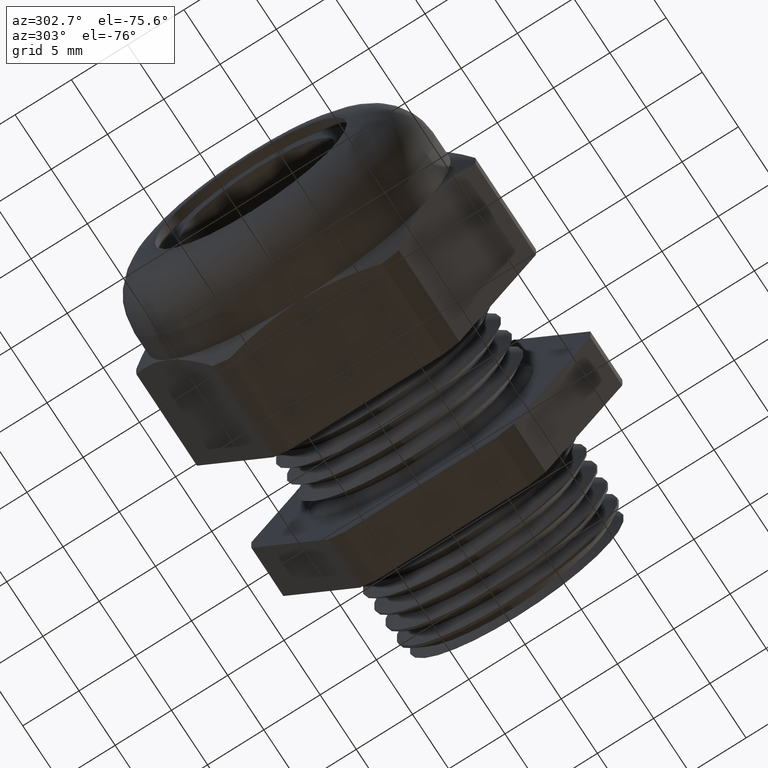
[diagram: clean part render]
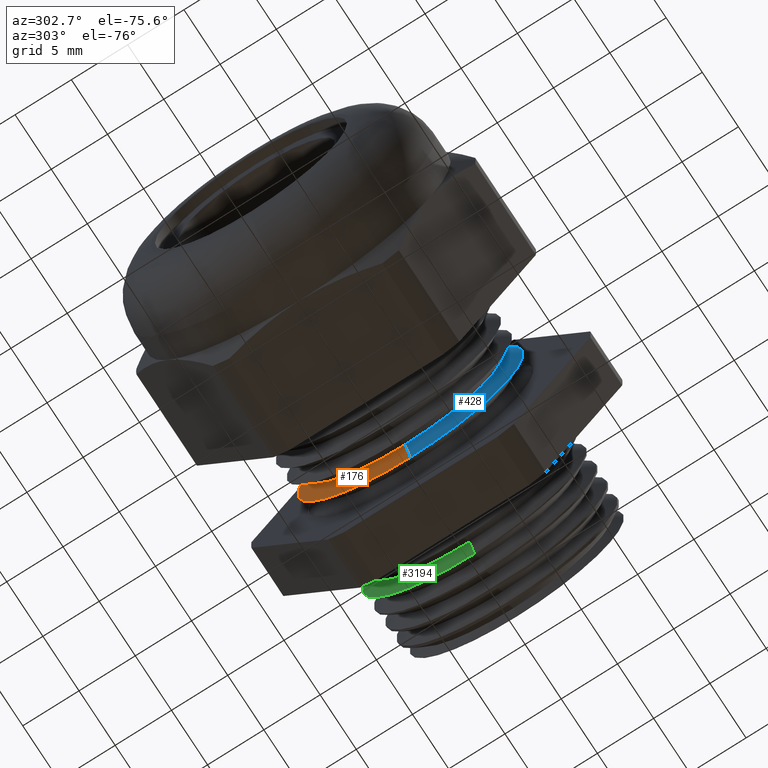
[diagram: same view with three faces highlighted in distinct colors, each labeled with its STEP entity id]
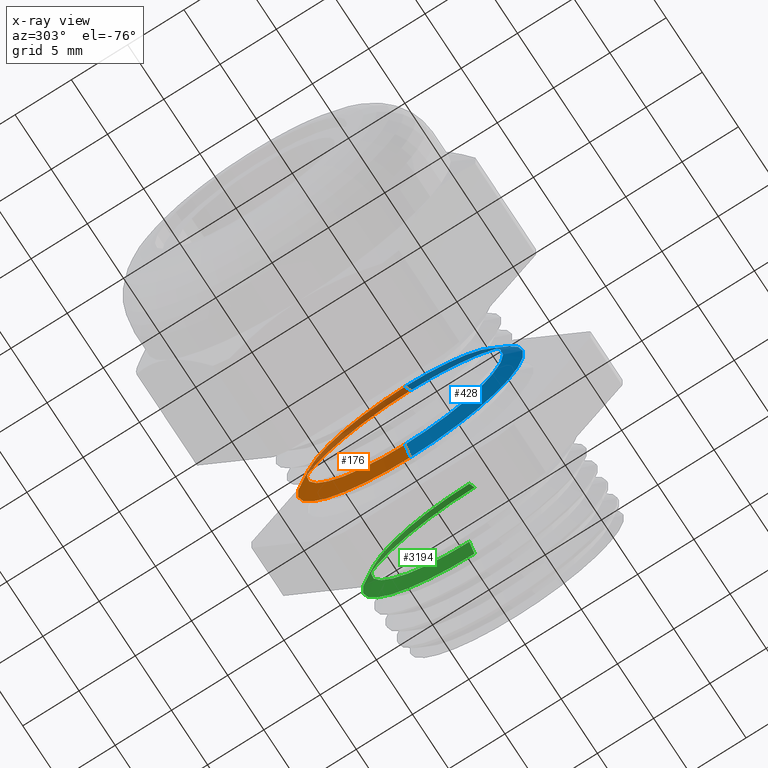
[diagram: x-ray of the same camera — body ghosted, the three highlighted faces saturated]
A machine part, auxiliary view with three faces highlighted in distinct colors.
The next image is the same camera in x-ray (body ghosted, the three faces saturated) — at least one of them is partly hidden behind the body in this view.
Their STEP definitions:

[orange] entity #176 — the highlighted conical surface has half-angle 60 deg.
#163 = ORIENTED_EDGE ( 'NONE', *, *, #166, .F. ) ;
#166 = EDGE_CURVE ( 'NONE', #183, #551, #1160, .T. ) ;
#171 = EDGE_CURVE ( 'NONE', #183, #307, #1204, .T. ) ;
#176 = ADVANCED_FACE ( 'NONE', ( #1190 ), #1188, .T. ) ;
#183 = VERTEX_POINT ( 'NONE', #1232 ) ;
#203 = EDGE_LOOP ( 'NONE', ( #311, #309, #308, #163 ) ) ;
#307 = VERTEX_POINT ( 'NONE', #1420 ) ;
#308 = ORIENTED_EDGE ( 'NONE', *, *, #550, .F. ) ;
#309 = ORIENTED_EDGE ( 'NONE', *, *, #310, .T. ) ;
#310 = EDGE_CURVE ( 'NONE', #307, #547, #1419, .T. ) ;
#311 = ORIENTED_EDGE ( 'NONE', *, *, #171, .T. ) ;
#547 = VERTEX_POINT ( 'NONE', #1793 ) ;
#550 = EDGE_CURVE ( 'NONE', #551, #547, #1785, .T. ) ;
#551 = VERTEX_POINT ( 'NONE', #1780 ) ;
#1147 = CARTESIAN_POINT ( 'NONE',  ( -0.2608333473208367400, 0.0000000000000000000, 0.0000000000000000000 ) ) ;
#1157 = DIRECTION ( 'NONE',  ( 0.5000000000000003300, 0.0000000000000000000, -0.8660254037844383700 ) ) ;
#1158 = VECTOR ( 'NONE', #1157, 39.37007874015748100 ) ;
#1159 = CARTESIAN_POINT ( 'NONE',  ( -0.2608333473208367400, 0.0000000000000000000, -0.3430385000000000200 ) ) ;
#1160 = LINE ( 'NONE', #1159, #1158 ) ;
#1184 = DIRECTION ( 'NONE',  ( 0.0000000000000000000, 0.0000000000000000000, -1.000000000000000000 ) ) ;
#1185 = DIRECTION ( 'NONE',  ( 1.000000000000000000, 0.0000000000000000000, 0.0000000000000000000 ) ) ;
#1186 = CARTESIAN_POINT ( 'NONE',  ( -0.2608333473208367400, 0.0000000000000000000, 0.0000000000000000000 ) ) ;
#1187 = AXIS2_PLACEMENT_3D ( 'NONE', #1186, #1185, #1184 ) ;
#1188 = CONICAL_SURFACE ( 'NONE', #1187, 0.3430385000000000200, 1.047197551196597400 ) ;
#1190 = FACE_OUTER_BOUND ( 'NONE', #203, .T. ) ;
#1201 = DIRECTION ( 'NONE',  ( 0.0000000000000000000, 0.0000000000000000000, -1.000000000000000000 ) ) ;
#1202 = DIRECTION ( 'NONE',  ( 1.000000000000000000, 0.0000000000000000000, 0.0000000000000000000 ) ) ;
#1203 = AXIS2_PLACEMENT_3D ( 'NONE', #1147, #1202, #1201 ) ;
#1204 = CIRCLE ( 'NONE', #1203, 0.3430385000000000200 ) ;
#1232 = CARTESIAN_POINT ( 'NONE',  ( -0.2608333473208367400, 0.0000000000000000000, -0.3430385000000000200 ) ) ;
#1416 = DIRECTION ( 'NONE',  ( 0.5000000000000003300, 1.060575238724906700E-016, 0.8660254037844383700 ) ) ;
#1417 = VECTOR ( 'NONE', #1416, 39.37007874015748100 ) ;
#1418 = CARTESIAN_POINT ( 'NONE',  ( -0.2608333473208367400, 4.201010010093093600E-017, 0.3430385000000000200 ) ) ;
#1419 = LINE ( 'NONE', #1418, #1417 ) ;
#1420 = CARTESIAN_POINT ( 'NONE',  ( -0.2608333473208367400, 4.519182433362568700E-017, 0.3430385000000000200 ) ) ;
#1780 = CARTESIAN_POINT ( 'NONE',  ( -0.2308333333333330600, 0.0000000000000000000, -0.3950000000000000200 ) ) ;
#1781 = DIRECTION ( 'NONE',  ( 0.0000000000000000000, 0.0000000000000000000, -1.000000000000000000 ) ) ;
#1782 = DIRECTION ( 'NONE',  ( 1.000000000000000000, 0.0000000000000000000, 0.0000000000000000000 ) ) ;
#1783 = CARTESIAN_POINT ( 'NONE',  ( -0.2308333333333330600, 0.0000000000000000000, 0.0000000000000000000 ) ) ;
#1784 = AXIS2_PLACEMENT_3D ( 'NONE', #1783, #1782, #1781 ) ;
#1785 = CIRCLE ( 'NONE', #1784, 0.3950000000000000200 ) ;
#1793 = CARTESIAN_POINT ( 'NONE',  ( -0.2308333333333330600, 4.837354856632045600E-017, 0.3950000000000000200 ) ) ;

[blue] entity #428 — the highlighted conical surface has half-angle 60 deg.
#166 = EDGE_CURVE ( 'NONE', #183, #551, #1160, .T. ) ;
#183 = VERTEX_POINT ( 'NONE', #1232 ) ;
#307 = VERTEX_POINT ( 'NONE', #1420 ) ;
#310 = EDGE_CURVE ( 'NONE', #307, #547, #1419, .T. ) ;
#419 = ORIENTED_EDGE ( 'NONE', *, *, #3260, .T. ) ;
#421 = EDGE_LOOP ( 'NONE', ( #422, #419, #3259, #3257 ) ) ;
#422 = ORIENTED_EDGE ( 'NONE', *, *, #310, .F. ) ;
#428 = ADVANCED_FACE ( 'NONE', ( #1643 ), #1642, .T. ) ;
#547 = VERTEX_POINT ( 'NONE', #1793 ) ;
#551 = VERTEX_POINT ( 'NONE', #1780 ) ;
#1157 = DIRECTION ( 'NONE',  ( 0.5000000000000003300, 0.0000000000000000000, -0.8660254037844383700 ) ) ;
#1158 = VECTOR ( 'NONE', #1157, 39.37007874015748100 ) ;
#1159 = CARTESIAN_POINT ( 'NONE',  ( -0.2608333473208367400, 0.0000000000000000000, -0.3430385000000000200 ) ) ;
#1160 = LINE ( 'NONE', #1159, #1158 ) ;
#1232 = CARTESIAN_POINT ( 'NONE',  ( -0.2608333473208367400, 0.0000000000000000000, -0.3430385000000000200 ) ) ;
#1416 = DIRECTION ( 'NONE',  ( 0.5000000000000003300, 1.060575238724906700E-016, 0.8660254037844383700 ) ) ;
#1417 = VECTOR ( 'NONE', #1416, 39.37007874015748100 ) ;
#1418 = CARTESIAN_POINT ( 'NONE',  ( -0.2608333473208367400, 4.201010010093093600E-017, 0.3430385000000000200 ) ) ;
#1419 = LINE ( 'NONE', #1418, #1417 ) ;
#1420 = CARTESIAN_POINT ( 'NONE',  ( -0.2608333473208367400, 4.519182433362568700E-017, 0.3430385000000000200 ) ) ;
#1638 = DIRECTION ( 'NONE',  ( 0.0000000000000000000, 0.0000000000000000000, -1.000000000000000000 ) ) ;
#1639 = DIRECTION ( 'NONE',  ( 1.000000000000000000, 0.0000000000000000000, 0.0000000000000000000 ) ) ;
#1640 = CARTESIAN_POINT ( 'NONE',  ( -0.2608333473208367400, 0.0000000000000000000, 0.0000000000000000000 ) ) ;
#1641 = AXIS2_PLACEMENT_3D ( 'NONE', #1640, #1639, #1638 ) ;
#1642 = CONICAL_SURFACE ( 'NONE', #1641, 0.3430385000000000200, 1.047197551196597400 ) ;
#1643 = FACE_OUTER_BOUND ( 'NONE', #421, .T. ) ;
#1780 = CARTESIAN_POINT ( 'NONE',  ( -0.2308333333333330600, 0.0000000000000000000, -0.3950000000000000200 ) ) ;
#1793 = CARTESIAN_POINT ( 'NONE',  ( -0.2308333333333330600, 4.837354856632045600E-017, 0.3950000000000000200 ) ) ;
#2905 = DIRECTION ( 'NONE',  ( 0.0000000000000000000, 0.0000000000000000000, -1.000000000000000000 ) ) ;
#2906 = DIRECTION ( 'NONE',  ( 1.000000000000000000, 0.0000000000000000000, 0.0000000000000000000 ) ) ;
#2907 = AXIS2_PLACEMENT_3D ( 'NONE', #2915, #2906, #2905 ) ;
#2908 = CIRCLE ( 'NONE', #2907, 0.3430385000000000200 ) ;
#2909 = DIRECTION ( 'NONE',  ( 0.0000000000000000000, 0.0000000000000000000, -1.000000000000000000 ) ) ;
#2910 = DIRECTION ( 'NONE',  ( 1.000000000000000000, 0.0000000000000000000, 0.0000000000000000000 ) ) ;
#2911 = CARTESIAN_POINT ( 'NONE',  ( -0.2308333333333330600, 0.0000000000000000000, 0.0000000000000000000 ) ) ;
#2912 = AXIS2_PLACEMENT_3D ( 'NONE', #2911, #2910, #2909 ) ;
#2913 = CIRCLE ( 'NONE', #2912, 0.3950000000000000200 ) ;
#2915 = CARTESIAN_POINT ( 'NONE',  ( -0.2608333473208367400, 0.0000000000000000000, 0.0000000000000000000 ) ) ;
#3257 = ORIENTED_EDGE ( 'NONE', *, *, #3258, .F. ) ;
#3258 = EDGE_CURVE ( 'NONE', #547, #551, #2913, .T. ) ;
#3259 = ORIENTED_EDGE ( 'NONE', *, *, #166, .T. ) ;
#3260 = EDGE_CURVE ( 'NONE', #307, #183, #2908, .T. ) ;

[green] entity #3194 — the highlighted conical surface has half-angle 60 deg.
#386 = EDGE_CURVE ( 'NONE', #3180, #387, #1586, .T. ) ;
#387 = VERTEX_POINT ( 'NONE', #1581 ) ;
#390 = ORIENTED_EDGE ( 'NONE', *, *, #407, .F. ) ;
#407 = EDGE_CURVE ( 'NONE', #3183, #387, #1556, .T. ) ;
#671 = ORIENTED_EDGE ( 'NONE', *, *, #386, .T. ) ;
#1554 = VECTOR ( 'NONE', #1619, 39.37007874015748100 ) ;
#1555 = CARTESIAN_POINT ( 'NONE',  ( 0.08999998601249635500, 0.0000000000000000000, -0.3430385000000000200 ) ) ;
#1556 = LINE ( 'NONE', #1555, #1554 ) ;
#1581 = CARTESIAN_POINT ( 'NONE',  ( 0.1182127781826162000, 4.799445785911579100E-017, -0.3919044894620343200 ) ) ;
#1582 = DIRECTION ( 'NONE',  ( 0.0000000000000000000, 0.0000000000000000000, -1.000000000000000000 ) ) ;
#1583 = DIRECTION ( 'NONE',  ( -1.000000000000000000, 0.0000000000000000000, 0.0000000000000000000 ) ) ;
#1584 = CARTESIAN_POINT ( 'NONE',  ( 0.1182127781826162000, 0.0000000000000000000, 0.0000000000000000000 ) ) ;
#1585 = AXIS2_PLACEMENT_3D ( 'NONE', #1584, #1583, #1582 ) ;
#1586 = CIRCLE ( 'NONE', #1585, 0.3919044894620343200 ) ;
#1619 = DIRECTION ( 'NONE',  ( 0.5000000000000003300, 0.0000000000000000000, -0.8660254037844383700 ) ) ;
#2773 = CARTESIAN_POINT ( 'NONE',  ( 0.08999998601249635500, 0.0000000000000000000, 0.3430385000000000200 ) ) ;
#2774 = CARTESIAN_POINT ( 'NONE',  ( 0.08999998601249635500, 4.509414201336433200E-017, -0.3430385000000000200 ) ) ;
#2775 = DIRECTION ( 'NONE',  ( 0.5000000000000003300, 1.060575238724906700E-016, 0.8660254037844383700 ) ) ;
#2776 = VECTOR ( 'NONE', #2775, 39.37007874015748100 ) ;
#2777 = CARTESIAN_POINT ( 'NONE',  ( 0.08999998601249635500, 4.201010010093093600E-017, 0.3430385000000000200 ) ) ;
#2778 = LINE ( 'NONE', #2777, #2776 ) ;
#2779 = CARTESIAN_POINT ( 'NONE',  ( 0.1182127781826162000, 0.0000000000000000000, 0.3919044894620343200 ) ) ;
#2813 = DIRECTION ( 'NONE',  ( 0.0000000000000000000, 0.0000000000000000000, -1.000000000000000000 ) ) ;
#2815 = DIRECTION ( 'NONE',  ( 1.000000000000000000, 0.0000000000000000000, 0.0000000000000000000 ) ) ;
#2816 = AXIS2_PLACEMENT_3D ( 'NONE', #2824, #2815, #2813 ) ;
#2818 = CONICAL_SURFACE ( 'NONE', #2816, 0.3430385000000000200, 1.047197551196597400 ) ;
#2819 = FACE_OUTER_BOUND ( 'NONE', #3190, .T. ) ;
#2824 = CARTESIAN_POINT ( 'NONE',  ( 0.08999998601249635500, 0.0000000000000000000, 0.0000000000000000000 ) ) ;
#2826 = DIRECTION ( 'NONE',  ( 0.0000000000000000000, 0.0000000000000000000, 1.000000000000000000 ) ) ;
#2827 = DIRECTION ( 'NONE',  ( -1.000000000000000000, 0.0000000000000000000, 0.0000000000000000000 ) ) ;
#2828 = CARTESIAN_POINT ( 'NONE',  ( 0.08999998601249635500, 0.0000000000000000000, 0.0000000000000000000 ) ) ;
#2829 = AXIS2_PLACEMENT_3D ( 'NONE', #2828, #2827, #2826 ) ;
#2830 = CIRCLE ( 'NONE', #2829, 0.3430385000000000200 ) ;
#3180 = VERTEX_POINT ( 'NONE', #2779 ) ;
#3181 = EDGE_CURVE ( 'NONE', #3184, #3180, #2778, .T. ) ;
#3182 = ORIENTED_EDGE ( 'NONE', *, *, #3181, .T. ) ;
#3183 = VERTEX_POINT ( 'NONE', #2774 ) ;
#3184 = VERTEX_POINT ( 'NONE', #2773 ) ;
#3190 = EDGE_LOOP ( 'NONE', ( #3191, #3182, #671, #390 ) ) ;
#3191 = ORIENTED_EDGE ( 'NONE', *, *, #3192, .F. ) ;
#3192 = EDGE_CURVE ( 'NONE', #3184, #3183, #2830, .T. ) ;
#3194 = ADVANCED_FACE ( 'NONE', ( #2819 ), #2818, .T. ) ;